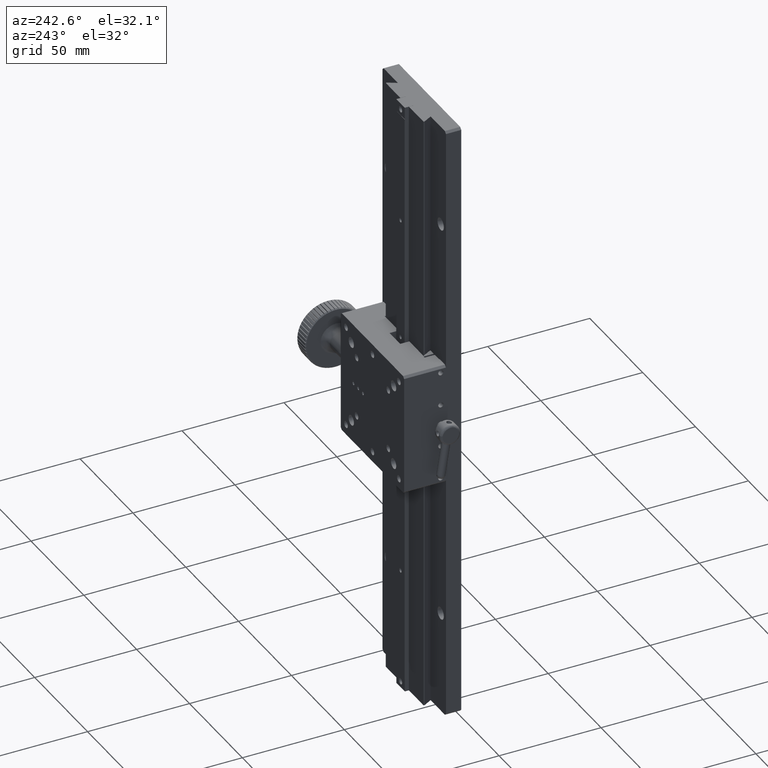
[diagram: clean part render]
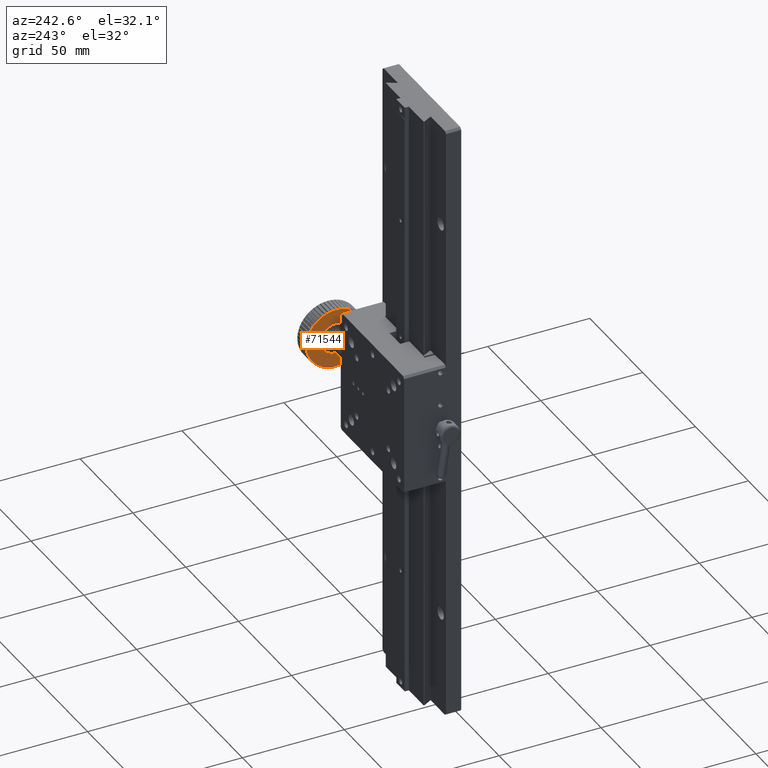
[diagram: same view with one face highlighted and labeled with its STEP entity id]
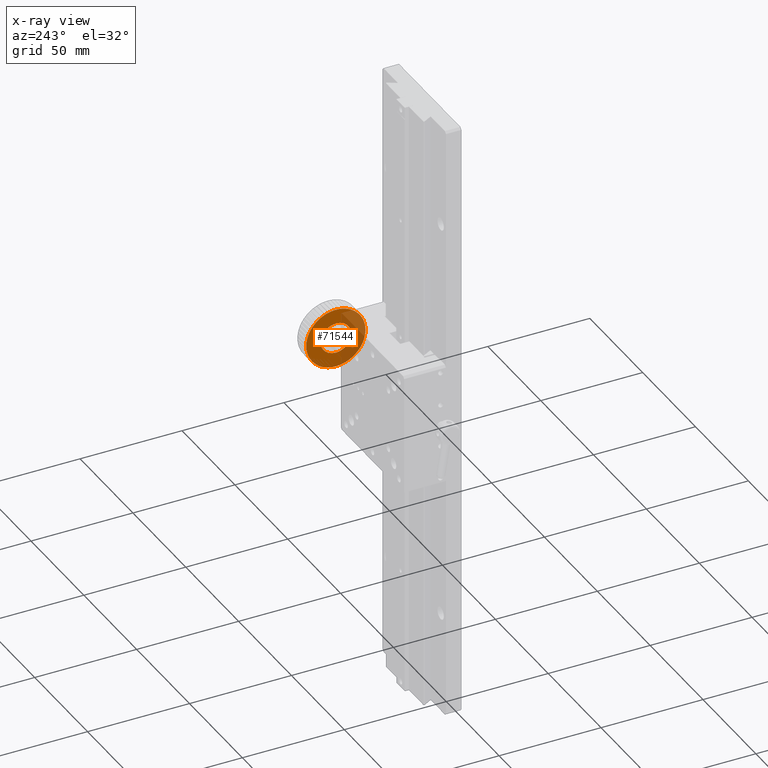
[diagram: x-ray of the same camera — body ghosted, the highlighted face saturated]
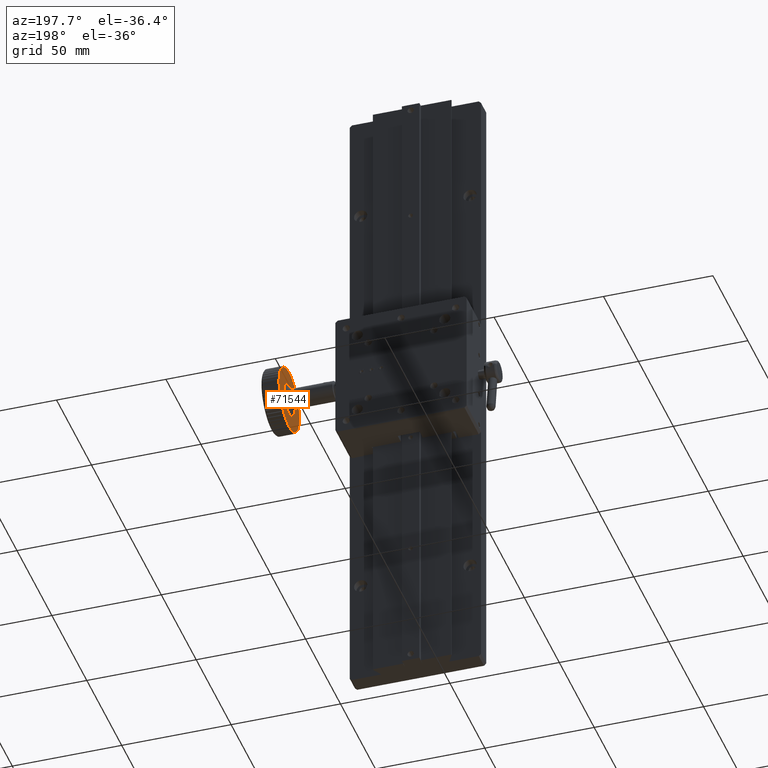
[diagram: same view with one face highlighted and labeled with its STEP entity id]
A machine part, auxiliary view. The second image highlights one B-rep face of the part: STEP entity #71544.
The next image is the same camera in x-ray: the body ghosted, the highlighted face saturated — about 41% of this face is hidden behind the body in this view.
A second angle (auxiliary view) of the same face is appended — the face is thin or edge-on in the first view.
In plain terms, the highlighted planar face has unit normal (1, 0, -0).
Its self-contained STEP definition (entity closure, byte-faithful):
#369 = VERTEX_POINT ( 'NONE', #78694 ) ;
#632 = CIRCLE ( 'NONE', #22159, 14.50000000000001243 ) ;
#742 = EDGE_CURVE ( 'NONE', #30210, #20585, #36621, .T. ) ;
#1082 = DIRECTION ( 'NONE',  ( -6.847956486251026892E-15, 1.000000000000000000, 0.000000000000000000 ) ) ;
#1203 = DIRECTION ( 'NONE',  ( 1.000000000000000000, 7.182248776586407690E-15, 7.933493717912134840E-16 ) ) ;
#1942 = ORIENTED_EDGE ( 'NONE', *, *, #100337, .F. ) ;
#1969 = DIRECTION ( 'NONE',  ( -7.656710514656244822E-15, 1.000000000000000000, 0.000000000000000000 ) ) ;
#2229 = DIRECTION ( 'NONE',  ( -7.656710514656244822E-15, 1.000000000000000000, 0.000000000000000000 ) ) ;
#2376 = DIRECTION ( 'NONE',  ( -7.656710514656244822E-15, 1.000000000000000000, 0.000000000000000000 ) ) ;
#2439 = CARTESIAN_POINT ( 'NONE',  ( 167.3082209827943814, 69.25613327495361204, 64.21141610167211411 ) ) ;
#2643 = AXIS2_PLACEMENT_3D ( 'NONE', #64743, #96328, #25394 ) ;
#2897 = DIRECTION ( 'NONE',  ( 1.000000000000000000, 7.182248776586407690E-15, 7.933493717912134840E-16 ) ) ;
#3110 = EDGE_LOOP ( 'NONE', ( #65495, #80890 ) ) ;
#3294 = DIRECTION ( 'NONE',  ( -7.656710514656244822E-15, 1.000000000000000000, 0.000000000000000000 ) ) ;
#3562 = CARTESIAN_POINT ( 'NONE',  ( 167.3082209827943814, 60.11985954301871260, 52.95182009226056863 ) ) ;
#3643 = EDGE_CURVE ( 'NONE', #60784, #56147, #6180, .T. ) ;
#4199 = DIRECTION ( 'NONE',  ( -7.656710514656244822E-15, 1.000000000000000000, 0.000000000000000000 ) ) ;
#4672 = CARTESIAN_POINT ( 'NONE',  ( 167.3082209827943245, 67.96859279277094856, 49.76869338375148999 ) ) ;
#5164 = AXIS2_PLACEMENT_3D ( 'NONE', #76730, #68940, #60160 ) ;
#5229 = EDGE_CURVE ( 'NONE', #59907, #88522, #60843, .T. ) ;
#5258 = EDGE_CURVE ( 'NONE', #94608, #98872, #54203, .T. ) ;
#5707 = AXIS2_PLACEMENT_3D ( 'NONE', #79042, #14871, #68717 ) ;
#5714 = DIRECTION ( 'NONE',  ( 1.000000000000000000, 7.182248776586407690E-15, 7.933493717912134840E-16 ) ) ;
#5757 = DIRECTION ( 'NONE',  ( -7.656710514656244822E-15, 1.000000000000000000, 0.000000000000000000 ) ) ;
#5851 = DIRECTION ( 'NONE',  ( -7.656710514656244822E-15, 1.000000000000000000, 0.000000000000000000 ) ) ;
#6180 = CIRCLE ( 'NONE', #29386, 14.50000000000001243 ) ;
#6252 = AXIS2_PLACEMENT_3D ( 'NONE', #82883, #44040, #4199 ) ;
#6485 = EDGE_CURVE ( 'NONE', #38094, #84059, #84008, .T. ) ;
#6624 = VERTEX_POINT ( 'NONE', #15041 ) ;
#6891 = CARTESIAN_POINT ( 'NONE',  ( 167.3082209827942677, 77.70933572211355056, 75.99247583275437989 ) ) ;
#6911 = EDGE_CURVE ( 'NONE', #23112, #45445, #14503, .T. ) ;
#6926 = VERTEX_POINT ( 'NONE', #102004 ) ;
#6961 = CARTESIAN_POINT ( 'NONE',  ( 167.3082209827943814, 69.25613327495361204, 64.21141610167211411 ) ) ;
#7124 = ORIENTED_EDGE ( 'NONE', *, *, #48319, .F. ) ;
#7412 = CARTESIAN_POINT ( 'NONE',  ( 167.3082209827943814, 69.25613327495361204, 64.21141610167211411 ) ) ;
#7487 = EDGE_CURVE ( 'NONE', #20585, #83687, #49299, .T. ) ;
#7679 = CARTESIAN_POINT ( 'NONE',  ( 167.3082209827944098, 57.73074387446003186, 73.01001821604181430 ) ) ;
#7999 = CARTESIAN_POINT ( 'NONE',  ( 167.3082209827942961, 73.07814718295520606, 78.19863203934326634 ) ) ;
#8064 = ORIENTED_EDGE ( 'NONE', *, *, #10528, .F. ) ;
#8103 = CARTESIAN_POINT ( 'NONE',  ( 167.3082209827942393, 76.25662021454932926, 51.51325943983538025 ) ) ;
#8386 = CARTESIAN_POINT ( 'NONE',  ( 167.3082209827943814, 69.25613327495361204, 64.21141610167211411 ) ) ;
#8494 = CARTESIAN_POINT ( 'NONE',  ( 167.3082209827943814, 69.25613327495361204, 64.21141610167211411 ) ) ;
#8745 = CARTESIAN_POINT ( 'NONE',  ( 167.3082209827944098, 58.85227804781087713, 74.31140602308565235 ) ) ;
#8781 = CIRCLE ( 'NONE', #17060, 14.50000000000001243 ) ;
#9289 = DIRECTION ( 'NONE',  ( 1.000000000000000000, 7.182248776586407690E-15, 7.933493717912134840E-16 ) ) ;
#9299 = DIRECTION ( 'NONE',  ( 1.000000000000000000, 7.182248776586407690E-15, 7.933493717912134840E-16 ) ) ;
#9323 = CARTESIAN_POINT ( 'NONE',  ( 167.3082209827944098, 61.51569429446423953, 76.47255815244865573 ) ) ;
#9364 = DIRECTION ( 'NONE',  ( 1.000000000000000000, 7.182248776586407690E-15, 7.933493717912134840E-16 ) ) ;
#9487 = DIRECTION ( 'NONE',  ( -7.656710514656244822E-15, 1.000000000000000000, 0.000000000000000000 ) ) ;
#9769 = CIRCLE ( 'NONE', #72576, 14.50000000000001243 ) ;
#9800 = CIRCLE ( 'NONE', #66042, 14.50000000000001243 ) ;
#10375 = DIRECTION ( 'NONE',  ( -7.656710514656244822E-15, 1.000000000000000000, 0.000000000000000000 ) ) ;
#10446 = DIRECTION ( 'NONE',  ( -7.656710514656244822E-15, 1.000000000000000000, 0.000000000000000000 ) ) ;
#10528 = EDGE_CURVE ( 'NONE', #28668, #53601, #18076, .T. ) ;
#10598 = CARTESIAN_POINT ( 'NONE',  ( 167.3082209827943529, 66.26944330320758070, 50.02234696332932629 ) ) ;
#11316 = CARTESIAN_POINT ( 'NONE',  ( 167.3082209827942108, 83.65435916714953635, 62.49645512331229469 ) ) ;
#11327 = EDGE_LOOP ( 'NONE', ( #64991, #25474, #37204, #97542, #59593, #8064, #35140, #43839, #53978, #86699, #36378, #28724, #35858, #69006, #46467, #18281, #93642, #19370, #88269, #100227, #26990, #44947, #30941, #13678, #24183, #58842, #22161, #79518, #33500, #28537, #17740, #47104, #7124, #30717, #68534, #37183, #17965, #17081, #77865, #76853, #26761, #14159, #72867, #74661, #71956, #1942, #89656, #21081, #85825, #102380, #47395, #64082, #92503 ) ) ;
#11875 = VERTEX_POINT ( 'NONE', #96768 ) ;
#11881 = DIRECTION ( 'NONE',  ( -7.656710514656244822E-15, 1.000000000000000000, 0.000000000000000000 ) ) ;
#12220 = CIRCLE ( 'NONE', #101476, 14.50000000000001243 ) ;
#12258 = DIRECTION ( 'NONE',  ( -7.656710514656244822E-15, 1.000000000000000000, 0.000000000000000000 ) ) ;
#12856 = EDGE_CURVE ( 'NONE', #35016, #94608, #87588, .T. ) ;
#13476 = DIRECTION ( 'NONE',  ( 1.000000000000000000, 7.182248776586407690E-15, 7.933493717912134840E-16 ) ) ;
#13557 = CARTESIAN_POINT ( 'NONE',  ( 167.3082209827944666, 54.72260658745184969, 55.84322621235492079 ) ) ;
#13648 = DIRECTION ( 'NONE',  ( 1.000000000000000000, 7.182248776586407690E-15, 7.933493717912134840E-16 ) ) ;
#13678 = ORIENTED_EDGE ( 'NONE', *, *, #25000, .F. ) ;
#13733 = AXIS2_PLACEMENT_3D ( 'NONE', #17129, #15087, #1082 ) ;
#13874 = CIRCLE ( 'NONE', #96614, 14.50000000000001243 ) ;
#13973 = AXIS2_PLACEMENT_3D ( 'NONE', #33562, #88440, #19561 ) ;
#14063 = CARTESIAN_POINT ( 'NONE',  ( 167.3082209827942108, 83.35046552911950357, 60.80556843784784604 ) ) ;
#14159 = ORIENTED_EDGE ( 'NONE', *, *, #7487, .F. ) ;
#14227 = AXIS2_PLACEMENT_3D ( 'NONE', #96844, #49707, #10375 ) ;
#14239 = CARTESIAN_POINT ( 'NONE',  ( 167.3082209827943814, 69.25613327495361204, 64.21141610167211411 ) ) ;
#14503 = CIRCLE ( 'NONE', #19566, 14.50000000000001243 ) ;
#14576 = CARTESIAN_POINT ( 'NONE',  ( 167.3082209827943529, 67.23056917390627518, 47.56368081808039960 ) ) ;
#14611 = CIRCLE ( 'NONE', #16242, 14.50000000000001243 ) ;
#14663 = DIRECTION ( 'NONE',  ( -7.656710514656244822E-15, 1.000000000000000000, 0.000000000000000000 ) ) ;
#14745 = AXIS2_PLACEMENT_3D ( 'NONE', #91850, #53490, #14663 ) ;
#14871 = DIRECTION ( 'NONE',  ( 1.000000000000000000, 7.182248776586407690E-15, 7.933493717912134840E-16 ) ) ;
#14950 = EDGE_CURVE ( 'NONE', #34648, #59740, #27919, .T. ) ;
#15041 = CARTESIAN_POINT ( 'NONE',  ( 167.3082209827942108, 80.24004628629704428, 54.74549538790953562 ) ) ;
#15087 = DIRECTION ( 'NONE',  ( 1.000000000000000000, 6.847956486251026892E-15, -1.642295520525387823E-16 ) ) ;
#15130 = CIRCLE ( 'NONE', #68024, 14.50000000000001243 ) ;
#15245 = EDGE_CURVE ( 'NONE', #98872, #49519, #74184, .T. ) ;
#15559 = CARTESIAN_POINT ( 'NONE',  ( 167.3082209827944382, 55.98652182492983087, 70.05670582634782306 ) ) ;
#15752 = CARTESIAN_POINT ( 'NONE',  ( 167.3082209827944098, 58.85227804781072081, 54.11142618025871798 ) ) ;
#16207 = AXIS2_PLACEMENT_3D ( 'NONE', #73299, #58252, #2376 ) ;
#16242 = AXIS2_PLACEMENT_3D ( 'NONE', #48617, #94218, #95755 ) ;
#16828 = DIRECTION ( 'NONE',  ( 1.000000000000000000, 7.182248776586407690E-15, 7.933493717912134840E-16 ) ) ;
#17060 = AXIS2_PLACEMENT_3D ( 'NONE', #60044, #92647, #21726 ) ;
#17081 = ORIENTED_EDGE ( 'NONE', *, *, #25442, .F. ) ;
#17129 = CARTESIAN_POINT ( 'NONE',  ( 167.3082209827942961, 77.53567866922821850, 76.71937868812661065 ) ) ;
#17475 = AXIS2_PLACEMENT_3D ( 'NONE', #36241, #51248, #67808 ) ;
#17578 = CARTESIAN_POINT ( 'NONE',  ( 167.3082209827943814, 69.25613327495361204, 64.21141610167211411 ) ) ;
#17740 = ORIENTED_EDGE ( 'NONE', *, *, #57649, .F. ) ;
#17965 = ORIENTED_EDGE ( 'NONE', *, *, #91819, .F. ) ;
#18076 = CIRCLE ( 'NONE', #77651, 14.50000000000001243 ) ;
#18256 = CARTESIAN_POINT ( 'NONE',  ( 167.3082209827943814, 69.25613327495361204, 64.21141610167211411 ) ) ;
#18281 = ORIENTED_EDGE ( 'NONE', *, *, #65430, .F. ) ;
#18542 = EDGE_CURVE ( 'NONE', #53601, #90741, #100476, .T. ) ;
#19241 = CIRCLE ( 'NONE', #53962, 14.50000000000001243 ) ;
#19370 = ORIENTED_EDGE ( 'NONE', *, *, #6911, .F. ) ;
#19469 = CARTESIAN_POINT ( 'NONE',  ( 167.3082209827943814, 69.25613327495361204, 64.21141610167211411 ) ) ;
#19561 = DIRECTION ( 'NONE',  ( -7.656710514656244822E-15, 1.000000000000000000, 0.000000000000000000 ) ) ;
#19566 = AXIS2_PLACEMENT_3D ( 'NONE', #77696, #46090, #70409 ) ;
#19822 = VERTEX_POINT ( 'NONE', #78409 ) ;
#19908 = DIRECTION ( 'NONE',  ( 1.000000000000000000, 7.182248776586407690E-15, 7.933493717912134840E-16 ) ) ;
#19938 = CARTESIAN_POINT ( 'NONE',  ( 167.3082209827943529, 64.61222039394256456, 77.94764823255790986 ) ) ;
#20266 = EDGE_CURVE ( 'NONE', #59740, #53208, #59036, .T. ) ;
#20585 = VERTEX_POINT ( 'NONE', #56615 ) ;
#21081 = ORIENTED_EDGE ( 'NONE', *, *, #53510, .F. ) ;
#21116 = DIRECTION ( 'NONE',  ( -7.656710514656244822E-15, 1.000000000000000000, 0.000000000000000000 ) ) ;
#21404 = AXIS2_PLACEMENT_3D ( 'NONE', #32358, #16828, #79998 ) ;
#21503 = CARTESIAN_POINT ( 'NONE',  ( 167.3082209827944098, 55.38831900294405131, 68.44623927590836843 ) ) ;
#21726 = DIRECTION ( 'NONE',  ( -7.656710514656244822E-15, 1.000000000000000000, 0.000000000000000000 ) ) ;
#21752 = DIRECTION ( 'NONE',  ( -7.656710514656244822E-15, 1.000000000000000000, 0.000000000000000000 ) ) ;
#22035 = VERTEX_POINT ( 'NONE', #44670 ) ;
#22054 = CARTESIAN_POINT ( 'NONE',  ( 167.3082209827944098, 60.11985954301887602, 75.47101211108380880 ) ) ;
#22102 = DIRECTION ( 'NONE',  ( 1.000000000000000000, 7.182248776586407690E-15, 7.933493717912134840E-16 ) ) ;
#22159 = AXIS2_PLACEMENT_3D ( 'NONE', #78874, #48288, #85613 ) ;
#22161 = ORIENTED_EDGE ( 'NONE', *, *, #12856, .F. ) ;
#22986 = AXIS2_PLACEMENT_3D ( 'NONE', #61764, #19908, #51469 ) ;
#23022 = DIRECTION ( 'NONE',  ( 1.000000000000000000, 7.182248776586407690E-15, 7.933493717912134840E-16 ) ) ;
#23112 = VERTEX_POINT ( 'NONE', #59044 ) ;
#23518 = DIRECTION ( 'NONE',  ( 1.000000000000000000, 7.182248776586407690E-15, 7.933493717912134840E-16 ) ) ;
#23681 = VERTEX_POINT ( 'NONE', #63000 ) ;
#24183 = ORIENTED_EDGE ( 'NONE', *, *, #15245, .F. ) ;
#24207 = CARTESIAN_POINT ( 'NONE',  ( 167.3082209827943814, 63.00215198172632824, 68.35118879880940312 ) ) ;
#24477 = AXIS2_PLACEMENT_3D ( 'NONE', #50798, #60106, #10446 ) ;
#24578 = AXIS2_PLACEMENT_3D ( 'NONE', #2439, #51596, #12258 ) ;
#24675 = CIRCLE ( 'NONE', #41241, 14.50000000000001243 ) ;
#24895 = DIRECTION ( 'NONE',  ( 1.000000000000000000, 7.182248776586407690E-15, 7.933493717912134840E-16 ) ) ;
#24943 = DIRECTION ( 'NONE',  ( -7.656710514656244822E-15, 1.000000000000000000, 0.000000000000000000 ) ) ;
#25000 = EDGE_CURVE ( 'NONE', #49519, #55529, #30935, .T. ) ;
#25394 = DIRECTION ( 'NONE',  ( -7.656710514656244822E-15, 1.000000000000000000, 0.000000000000000000 ) ) ;
#25442 = EDGE_CURVE ( 'NONE', #76677, #6926, #73958, .T. ) ;
#25474 = ORIENTED_EDGE ( 'NONE', *, *, #5229, .F. ) ;
#25701 = EDGE_CURVE ( 'NONE', #73346, #76677, #82317, .T. ) ;
#26133 = AXIS2_PLACEMENT_3D ( 'NONE', #61592, #5714, #21752 ) ;
#26232 = VERTEX_POINT ( 'NONE', #8745 ) ;
#26262 = CARTESIAN_POINT ( 'NONE',  ( 167.3082209827944098, 55.38831900294398025, 59.97659292743605164 ) ) ;
#26370 = DIRECTION ( 'NONE',  ( -7.656710514656244822E-15, 1.000000000000000000, 0.000000000000000000 ) ) ;
#26761 = ORIENTED_EDGE ( 'NONE', *, *, #71032, .F. ) ;
#26990 = ORIENTED_EDGE ( 'NONE', *, *, #14950, .F. ) ;
#27064 = EDGE_CURVE ( 'NONE', #62506, #36990, #74999, .T. ) ;
#27919 = CIRCLE ( 'NONE', #67607, 14.50000000000001243 ) ;
#28257 = EDGE_CURVE ( 'NONE', #71192, #11875, #50895, .T. ) ;
#28423 = DIRECTION ( 'NONE',  ( 1.000000000000000000, 7.182248776586407690E-15, 7.933493717912134840E-16 ) ) ;
#28537 = ORIENTED_EDGE ( 'NONE', *, *, #80657, .F. ) ;
#28668 = VERTEX_POINT ( 'NONE', #70372 ) ;
#28721 = EDGE_CURVE ( 'NONE', #37686, #35016, #95610, .T. ) ;
#28724 = ORIENTED_EDGE ( 'NONE', *, *, #6485, .F. ) ;
#28860 = CARTESIAN_POINT ( 'NONE',  ( 167.3082209827943814, 69.25613327495361204, 64.21141610167211411 ) ) ;
#28908 = AXIS2_PLACEMENT_3D ( 'NONE', #92041, #91536, #21116 ) ;
#29026 = EDGE_CURVE ( 'NONE', #90741, #40775, #14611, .T. ) ;
#29386 = AXIS2_PLACEMENT_3D ( 'NONE', #93038, #70226, #30894 ) ;
#29589 = CARTESIAN_POINT ( 'NONE',  ( 167.3082209827942393, 81.28251571398159570, 72.31179420582490991 ) ) ;
#29896 = CARTESIAN_POINT ( 'NONE',  ( 167.3082209827942108, 83.35046552911956041, 67.61726376549617612 ) ) ;
#29976 = AXIS2_PLACEMENT_3D ( 'NONE', #74163, #73154, #2229 ) ;
#30210 = VERTEX_POINT ( 'NONE', #7999 ) ;
#30717 = ORIENTED_EDGE ( 'NONE', *, *, #77315, .F. ) ;
#30894 = DIRECTION ( 'NONE',  ( -7.656710514656244822E-15, 1.000000000000000000, 0.000000000000000000 ) ) ;
#30905 = CIRCLE ( 'NONE', #60673, 14.50000000000001243 ) ;
#30935 = CIRCLE ( 'NONE', #80563, 14.50000000000001243 ) ;
#30941 = ORIENTED_EDGE ( 'NONE', *, *, #53213, .F. ) ;
#31433 = CARTESIAN_POINT ( 'NONE',  ( 167.3082209827942961, 73.07814718295499290, 50.22420016400089082 ) ) ;
#31634 = DIRECTION ( 'NONE',  ( -7.656710514656244822E-15, 1.000000000000000000, 0.000000000000000000 ) ) ;
#32146 = FACE_BOUND ( 'NONE', #3110, .T. ) ;
#32318 = CIRCLE ( 'NONE', #70295, 14.50000000000001243 ) ;
#32348 = CIRCLE ( 'NONE', #52190, 14.50000000000001243 ) ;
#32358 = CARTESIAN_POINT ( 'NONE',  ( 167.3082209827943814, 69.25613327495361204, 64.21141610167211411 ) ) ;
#33151 = EDGE_CURVE ( 'NONE', #43740, #68751, #92567, .T. ) ;
#33500 = ORIENTED_EDGE ( 'NONE', *, *, #68095, .F. ) ;
#33562 = CARTESIAN_POINT ( 'NONE',  ( 167.3082209827943814, 69.25613327495361204, 64.21141610167211411 ) ) ;
#33899 = CARTESIAN_POINT ( 'NONE',  ( 167.3082209827943529, 64.61222039394237981, 50.47518397078636099 ) ) ;
#34469 = DIRECTION ( 'NONE',  ( -7.656710514656244822E-15, 1.000000000000000000, 0.000000000000000000 ) ) ;
#34523 = VERTEX_POINT ( 'NONE', #21503 ) ;
#34648 = VERTEX_POINT ( 'NONE', #15752 ) ;
#34799 = DIRECTION ( 'NONE',  ( -7.656710514656244822E-15, 1.000000000000000000, 0.000000000000000000 ) ) ;
#35016 = VERTEX_POINT ( 'NONE', #63347 ) ;
#35109 = AXIS2_PLACEMENT_3D ( 'NONE', #88131, #81397, #48766 ) ;
#35140 = ORIENTED_EDGE ( 'NONE', *, *, #79951, .F. ) ;
#35244 = EDGE_CURVE ( 'NONE', #23681, #86205, #81061, .T. ) ;
#35755 = CIRCLE ( 'NONE', #14227, 14.50000000000001243 ) ;
#35835 = AXIS2_PLACEMENT_3D ( 'NONE', #6961, #23022, #76891 ) ;
#35858 = ORIENTED_EDGE ( 'NONE', *, *, #90245, .F. ) ;
#36140 = DIRECTION ( 'NONE',  ( 1.000000000000000000, 7.182248776586407690E-15, 7.933493717912134840E-16 ) ) ;
#36154 = CIRCLE ( 'NONE', #24578, 14.50000000000001243 ) ;
#36198 = VERTEX_POINT ( 'NONE', #51423 ) ;
#36241 = CARTESIAN_POINT ( 'NONE',  ( 167.3082209827943814, 69.25613327495361204, 64.21141610167211411 ) ) ;
#36378 = ORIENTED_EDGE ( 'NONE', *, *, #61796, .F. ) ;
#36621 = CIRCLE ( 'NONE', #71307, 14.50000000000001243 ) ;
#36990 = VERTEX_POINT ( 'NONE', #41501 ) ;
#37183 = ORIENTED_EDGE ( 'NONE', *, *, #68441, .F. ) ;
#37204 = ORIENTED_EDGE ( 'NONE', *, *, #57661, .F. ) ;
#37288 = CARTESIAN_POINT ( 'NONE',  ( 167.3082209827943814, 69.25613327495361204, 64.21141610167211411 ) ) ;
#37686 = VERTEX_POINT ( 'NONE', #54219 ) ;
#38094 = VERTEX_POINT ( 'NONE', #31433 ) ;
#38181 = CARTESIAN_POINT ( 'NONE',  ( 167.3082209827942108, 82.15616109437746672, 70.83254004388076908 ) ) ;
#38543 = DIRECTION ( 'NONE',  ( -7.656710514656244822E-15, 1.000000000000000000, 0.000000000000000000 ) ) ;
#38554 = CIRCLE ( 'NONE', #78290, 14.50000000000001243 ) ;
#39386 = PLANE ( 'NONE',  #13733 ) ;
#39884 = EDGE_CURVE ( 'NONE', #81503, #71192, #69634, .T. ) ;
#40069 = DIRECTION ( 'NONE',  ( -7.656710514656244822E-15, 1.000000000000000000, 0.000000000000000000 ) ) ;
#40271 = CARTESIAN_POINT ( 'NONE',  ( 167.3082209827942108, 83.75613327495355520, 64.21141610167211411 ) ) ;
#40428 = FACE_OUTER_BOUND ( 'NONE', #11327, .T. ) ;
#40473 = EDGE_CURVE ( 'NONE', #36990, #62506, #56520, .T. ) ;
#40499 = DIRECTION ( 'NONE',  ( -7.656710514656244822E-15, 1.000000000000000000, 0.000000000000000000 ) ) ;
#40605 = EDGE_CURVE ( 'NONE', #36198, #60784, #101081, .T. ) ;
#40775 = VERTEX_POINT ( 'NONE', #14063 ) ;
#40776 = DIRECTION ( 'NONE',  ( 1.000000000000000000, 7.182248776586407690E-15, 7.933493717912134840E-16 ) ) ;
#40948 = DIRECTION ( 'NONE',  ( -7.656710514656244822E-15, 1.000000000000000000, 0.000000000000000000 ) ) ;
#41233 = CARTESIAN_POINT ( 'NONE',  ( 167.3082209827942393, 79.04338679696775216, 74.90999864777703010 ) ) ;
#41241 = AXIS2_PLACEMENT_3D ( 'NONE', #95305, #24895, #31634 ) ;
#41351 = EDGE_CURVE ( 'NONE', #48417, #26232, #15130, .T. ) ;
#41501 = CARTESIAN_POINT ( 'NONE',  ( 167.3082209827942961, 75.51011456818085321, 60.07164340453480378 ) ) ;
#42545 = CARTESIAN_POINT ( 'NONE',  ( 167.3082209827942961, 71.39700845298949616, 49.87033338550072870 ) ) ;
#42952 = AXIS2_PLACEMENT_3D ( 'NONE', #14239, #47320, #38543 ) ;
#43658 = CARTESIAN_POINT ( 'NONE',  ( 167.3082209827943814, 69.25613327495361204, 64.21141610167211411 ) ) ;
#43740 = VERTEX_POINT ( 'NONE', #41233 ) ;
#43839 = ORIENTED_EDGE ( 'NONE', *, *, #80859, .F. ) ;
#44040 = DIRECTION ( 'NONE',  ( 1.000000000000000000, 7.182248776586407690E-15, 7.933493717912134840E-16 ) ) ;
#44218 = CARTESIAN_POINT ( 'NONE',  ( 167.3082209827942961, 69.68581652838062723, 49.71778397229460467 ) ) ;
#44670 = CARTESIAN_POINT ( 'NONE',  ( 167.3082209827942677, 76.25662021454951400, 76.90957276350873428 ) ) ;
#44947 = ORIENTED_EDGE ( 'NONE', *, *, #91382, .F. ) ;
#45227 = DIRECTION ( 'NONE',  ( -7.656710514656244822E-15, 1.000000000000000000, 0.000000000000000000 ) ) ;
#45229 = VERTEX_POINT ( 'NONE', #92982 ) ;
#45372 = CIRCLE ( 'NONE', #13973, 14.50000000000001243 ) ;
#45445 = VERTEX_POINT ( 'NONE', #33899 ) ;
#45964 = EDGE_CURVE ( 'NONE', #22035, #369, #52814, .T. ) ;
#46090 = DIRECTION ( 'NONE',  ( 1.000000000000000000, 7.182248776586407690E-15, 7.933493717912134840E-16 ) ) ;
#46459 = EDGE_CURVE ( 'NONE', #369, #30210, #57762, .T. ) ;
#46467 = ORIENTED_EDGE ( 'NONE', *, *, #59126, .F. ) ;
#46611 = EDGE_CURVE ( 'NONE', #82070, #36198, #9800, .T. ) ;
#46733 = DIRECTION ( 'NONE',  ( -7.656710514656244822E-15, 1.000000000000000000, 0.000000000000000000 ) ) ;
#46753 = AXIS2_PLACEMENT_3D ( 'NONE', #73399, #89444, #1969 ) ;
#47104 = ORIENTED_EDGE ( 'NONE', *, *, #35244, .F. ) ;
#47320 = DIRECTION ( 'NONE',  ( 1.000000000000000000, 7.182248776586407690E-15, 7.933493717912134840E-16 ) ) ;
#47389 = CARTESIAN_POINT ( 'NONE',  ( 167.3082209827942393, 80.24004628629715796, 73.67733681543452917 ) ) ;
#47395 = ORIENTED_EDGE ( 'NONE', *, *, #40605, .F. ) ;
#47839 = AXIS2_PLACEMENT_3D ( 'NONE', #63707, #9364, #40948 ) ;
#47971 = AXIS2_PLACEMENT_3D ( 'NONE', #8494, #23518, #40069 ) ;
#48288 = DIRECTION ( 'NONE',  ( 1.000000000000000000, 7.182248776586407690E-15, 7.933493717912134840E-16 ) ) ;
#48319 = EDGE_CURVE ( 'NONE', #70803, #23681, #36154, .T. ) ;
#48417 = VERTEX_POINT ( 'NONE', #22054 ) ;
#48617 = CARTESIAN_POINT ( 'NONE',  ( 167.3082209827943814, 69.25613327495361204, 64.21141610167211411 ) ) ;
#48766 = DIRECTION ( 'NONE',  ( -7.656710514656244822E-15, 1.000000000000000000, 0.000000000000000000 ) ) ;
#49096 = CARTESIAN_POINT ( 'NONE',  ( 167.3082209827943814, 69.25613327495361204, 64.21141610167211411 ) ) ;
#49299 = CIRCLE ( 'NONE', #82434, 14.50000000000001243 ) ;
#49519 = VERTEX_POINT ( 'NONE', #82035 ) ;
#49707 = DIRECTION ( 'NONE',  ( 1.000000000000000000, 7.182248776586407690E-15, 7.933493717912134840E-16 ) ) ;
#50288 = CIRCLE ( 'NONE', #5707, 14.50000000000001243 ) ;
#50798 = CARTESIAN_POINT ( 'NONE',  ( 167.3082209827943814, 69.25613327495361204, 64.21141610167211411 ) ) ;
#50862 = DIRECTION ( 'NONE',  ( -7.656710514656244822E-15, 1.000000000000000000, 0.000000000000000000 ) ) ;
#50895 = CIRCLE ( 'NONE', #6252, 14.50000000000001243 ) ;
#51248 = DIRECTION ( 'NONE',  ( 1.000000000000000000, 7.182248776586407690E-15, 7.933493717912134840E-16 ) ) ;
#51423 = CARTESIAN_POINT ( 'NONE',  ( 167.3082209827942108, 82.84871836139836887, 69.26033981547071505 ) ) ;
#51469 = DIRECTION ( 'NONE',  ( -7.656710514656244822E-15, 1.000000000000000000, 0.000000000000000000 ) ) ;
#51596 = DIRECTION ( 'NONE',  ( 1.000000000000000000, 7.182248776586407690E-15, 7.933493717912134840E-16 ) ) ;
#51670 = CIRCLE ( 'NONE', #35109, 14.50000000000001243 ) ;
#52190 = AXIS2_PLACEMENT_3D ( 'NONE', #18256, #96943, #34799 ) ;
#52814 = CIRCLE ( 'NONE', #21404, 14.50000000000001243 ) ;
#52950 = CARTESIAN_POINT ( 'NONE',  ( 167.3082209827943814, 69.25613327495361204, 64.21141610167211411 ) ) ;
#53208 = VERTEX_POINT ( 'NONE', #88568 ) ;
#53213 = EDGE_CURVE ( 'NONE', #55529, #58991, #24675, .T. ) ;
#53490 = DIRECTION ( 'NONE',  ( 1.000000000000000000, 7.182248776586407690E-15, 7.933493717912134840E-16 ) ) ;
#53510 = EDGE_CURVE ( 'NONE', #75456, #43740, #85936, .T. ) ;
#53601 = VERTEX_POINT ( 'NONE', #56975 ) ;
#53914 = CARTESIAN_POINT ( 'NONE',  ( 167.3082209827943814, 63.00215198172632824, 68.35118879880940312 ) ) ;
#53962 = AXIS2_PLACEMENT_3D ( 'NONE', #66190, #9289, #72961 ) ;
#53978 = ORIENTED_EDGE ( 'NONE', *, *, #28257, .F. ) ;
#54203 = CIRCLE ( 'NONE', #16207, 14.50000000000001243 ) ;
#54219 = CARTESIAN_POINT ( 'NONE',  ( 167.3082209827944382, 54.78159916437091681, 65.07040520613108470 ) ) ;
#54913 = DIRECTION ( 'NONE',  ( 1.000000000000000000, 7.182248776586407690E-15, 7.933493717912134840E-16 ) ) ;
#55419 = DIRECTION ( 'NONE',  ( -7.656710514656244822E-15, 1.000000000000000000, 0.000000000000000000 ) ) ;
#55529 = VERTEX_POINT ( 'NONE', #57581 ) ;
#56147 = VERTEX_POINT ( 'NONE', #29589 ) ;
#56520 =( BOUNDED_CURVE ( )  B_SPLINE_CURVE ( 3, ( #61682, #14576, #13557, #53914 ),
 .UNSPECIFIED., .F., .F. ) 
 B_SPLINE_CURVE_WITH_KNOTS ( ( 4, 4 ),
 ( 0.000000000000000000, 1.000000000000000000 ),
 .UNSPECIFIED. ) 
 CURVE ( )  GEOMETRIC_REPRESENTATION_ITEM ( )  RATIONAL_B_SPLINE_CURVE ( ( 1.000000000000000000, 0.3333333333333354798, 0.3333333333333354798, 1.000000000000000000 ) ) 
 REPRESENTATION_ITEM ( '' )  );
#56615 = CARTESIAN_POINT ( 'NONE',  ( 167.3082209827943245, 71.39700845298969512, 78.55249881784344268 ) ) ;
#56975 = CARTESIAN_POINT ( 'NONE',  ( 167.3082209827942393, 82.15616109437739567, 57.59029215946326019 ) ) ;
#57561 = CARTESIAN_POINT ( 'NONE',  ( 167.3082209827942961, 74.70563321560997849, 50.77441679391052531 ) ) ;
#57581 = CARTESIAN_POINT ( 'NONE',  ( 167.3082209827944098, 56.77100090432688972, 56.83771488125849203 ) ) ;
#57649 = EDGE_CURVE ( 'NONE', #86205, #34523, #68746, .T. ) ;
#57661 = EDGE_CURVE ( 'NONE', #40775, #59907, #35755, .T. ) ;
#57762 = CIRCLE ( 'NONE', #14745, 14.50000000000001243 ) ;
#57888 = DIRECTION ( 'NONE',  ( -7.656710514656244822E-15, 1.000000000000000000, 0.000000000000000000 ) ) ;
#57913 = CARTESIAN_POINT ( 'NONE',  ( 167.3082209827943814, 57.73074387445991817, 55.41281398730256313 ) ) ;
#57970 = VERTEX_POINT ( 'NONE', #4672 ) ;
#58029 = EDGE_CURVE ( 'NONE', #94269, #82070, #90274, .T. ) ;
#58252 = DIRECTION ( 'NONE',  ( 1.000000000000000000, 7.182248776586407690E-15, 7.933493717912134840E-16 ) ) ;
#58842 = ORIENTED_EDGE ( 'NONE', *, *, #5258, .F. ) ;
#58991 = VERTEX_POINT ( 'NONE', #57913 ) ;
#59036 = CIRCLE ( 'NONE', #35835, 14.50000000000001243 ) ;
#59044 = CARTESIAN_POINT ( 'NONE',  ( 167.3082209827943814, 63.02018784194396517, 51.12084756716889444 ) ) ;
#59126 = EDGE_CURVE ( 'NONE', #57970, #67943, #19241, .T. ) ;
#59493 = CARTESIAN_POINT ( 'NONE',  ( 167.3082209827943814, 69.25613327495361204, 64.21141610167211411 ) ) ;
#59593 = ORIENTED_EDGE ( 'NONE', *, *, #18542, .F. ) ;
#59667 = DIRECTION ( 'NONE',  ( 1.000000000000000000, 7.182248776586407690E-15, 7.933493717912134840E-16 ) ) ;
#59740 = VERTEX_POINT ( 'NONE', #3562 ) ;
#59907 = VERTEX_POINT ( 'NONE', #11316 ) ;
#60044 = CARTESIAN_POINT ( 'NONE',  ( 167.3082209827943814, 69.25613327495361204, 64.21141610167211411 ) ) ;
#60106 = DIRECTION ( 'NONE',  ( 1.000000000000000000, 7.182248776586407690E-15, 7.933493717912134840E-16 ) ) ;
#60160 = DIRECTION ( 'NONE',  ( -7.656710514656244822E-15, 1.000000000000000000, 0.000000000000000000 ) ) ;
#60512 = CARTESIAN_POINT ( 'NONE',  ( 167.3082209827943814, 69.25613327495361204, 64.21141610167211411 ) ) ;
#60673 = AXIS2_PLACEMENT_3D ( 'NONE', #101531, #54913, #55419 ) ;
#60784 = VERTEX_POINT ( 'NONE', #38181 ) ;
#60843 = CIRCLE ( 'NONE', #102155, 14.50000000000001243 ) ;
#61592 = CARTESIAN_POINT ( 'NONE',  ( 167.3082209827943814, 69.25613327495361204, 64.21141610167211411 ) ) ;
#61682 = CARTESIAN_POINT ( 'NONE',  ( 167.3082209827942961, 75.51011456818085321, 60.07164340453480378 ) ) ;
#61764 = CARTESIAN_POINT ( 'NONE',  ( 167.3082209827943814, 69.25613327495361204, 64.21141610167211411 ) ) ;
#61796 = EDGE_CURVE ( 'NONE', #84059, #81503, #88722, .T. ) ;
#62506 = VERTEX_POINT ( 'NONE', #24207 ) ;
#62567 = AXIS2_PLACEMENT_3D ( 'NONE', #8386, #95876, #24943 ) ;
#62663 = EDGE_CURVE ( 'NONE', #45445, #89319, #32318, .T. ) ;
#63000 = CARTESIAN_POINT ( 'NONE',  ( 167.3082209827944382, 56.77100090432700341, 71.58511732208590672 ) ) ;
#63347 = CARTESIAN_POINT ( 'NONE',  ( 167.3082209827944382, 54.78159916437091681, 63.35242699721334247 ) ) ;
#63707 = CARTESIAN_POINT ( 'NONE',  ( 167.3082209827943814, 69.25613327495361204, 64.21141610167211411 ) ) ;
#64082 = ORIENTED_EDGE ( 'NONE', *, *, #46611, .F. ) ;
#64261 = CARTESIAN_POINT ( 'NONE',  ( 167.3082209827942961, 75.51011456818085321, 60.07164340453480378 ) ) ;
#64743 = CARTESIAN_POINT ( 'NONE',  ( 167.3082209827943814, 69.25613327495361204, 64.21141610167211411 ) ) ;
#64991 = ORIENTED_EDGE ( 'NONE', *, *, #88199, .F. ) ;
#65314 = AXIS2_PLACEMENT_3D ( 'NONE', #59493, #76566, #11881 ) ;
#65430 = EDGE_CURVE ( 'NONE', #89319, #57970, #30905, .T. ) ;
#65495 = ORIENTED_EDGE ( 'NONE', *, *, #40473, .F. ) ;
#65885 = CARTESIAN_POINT ( 'NONE',  ( 167.3082209827943814, 69.25613327495361204, 64.21141610167211411 ) ) ;
#65964 = CIRCLE ( 'NONE', #22986, 14.50000000000001243 ) ;
#66030 = CARTESIAN_POINT ( 'NONE',  ( 167.3082209827943814, 69.25613327495361204, 64.21141610167211411 ) ) ;
#66042 = AXIS2_PLACEMENT_3D ( 'NONE', #90033, #28423, #26370 ) ;
#66190 = CARTESIAN_POINT ( 'NONE',  ( 167.3082209827943814, 69.25613327495361204, 64.21141610167211411 ) ) ;
#67607 = AXIS2_PLACEMENT_3D ( 'NONE', #52950, #76780, #5851 ) ;
#67808 = DIRECTION ( 'NONE',  ( -7.656710514656244822E-15, 1.000000000000000000, 0.000000000000000000 ) ) ;
#67943 = VERTEX_POINT ( 'NONE', #44218 ) ;
#68024 = AXIS2_PLACEMENT_3D ( 'NONE', #70466, #95316, #72534 ) ;
#68095 = EDGE_CURVE ( 'NONE', #45229, #37686, #65964, .T. ) ;
#68359 = DIRECTION ( 'NONE',  ( -7.656710514656244822E-15, 1.000000000000000000, 0.000000000000000000 ) ) ;
#68441 = EDGE_CURVE ( 'NONE', #96070, #48417, #9769, .T. ) ;
#68495 = AXIS2_PLACEMENT_3D ( 'NONE', #89986, #36140, #98786 ) ;
#68534 = ORIENTED_EDGE ( 'NONE', *, *, #41351, .F. ) ;
#68717 = DIRECTION ( 'NONE',  ( -7.656710514656244822E-15, 1.000000000000000000, 0.000000000000000000 ) ) ;
#68746 = CIRCLE ( 'NONE', #2643, 14.50000000000001243 ) ;
#68751 = VERTEX_POINT ( 'NONE', #6891 ) ;
#68940 = DIRECTION ( 'NONE',  ( 1.000000000000000000, 7.182248776586407690E-15, 7.933493717912134840E-16 ) ) ;
#69006 = ORIENTED_EDGE ( 'NONE', *, *, #81756, .F. ) ;
#69332 = CARTESIAN_POINT ( 'NONE',  ( 167.3082209827943529, 66.26944330320777965, 78.40048524001491614 ) ) ;
#69634 = CIRCLE ( 'NONE', #29976, 14.50000000000001243 ) ;
#70181 = CIRCLE ( 'NONE', #80107, 14.50000000000001243 ) ;
#70226 = DIRECTION ( 'NONE',  ( 1.000000000000000000, 7.182248776586407690E-15, 7.933493717912134840E-16 ) ) ;
#70295 = AXIS2_PLACEMENT_3D ( 'NONE', #92215, #40776, #5757 ) ;
#70358 = CARTESIAN_POINT ( 'NONE',  ( 167.3082209827942108, 83.65435916714957898, 65.92637708003172747 ) ) ;
#70372 = CARTESIAN_POINT ( 'NONE',  ( 167.3082209827942393, 81.28251571398146780, 56.11103799751914067 ) ) ;
#70409 = DIRECTION ( 'NONE',  ( -7.656710514656244822E-15, 1.000000000000000000, 0.000000000000000000 ) ) ;
#70466 = CARTESIAN_POINT ( 'NONE',  ( 167.3082209827943814, 69.25613327495361204, 64.21141610167211411 ) ) ;
#70803 = VERTEX_POINT ( 'NONE', #7679 ) ;
#71032 = EDGE_CURVE ( 'NONE', #83687, #19822, #91433, .T. ) ;
#71192 = VERTEX_POINT ( 'NONE', #99774 ) ;
#71307 = AXIS2_PLACEMENT_3D ( 'NONE', #17578, #9299, #88501 ) ;
#71544 = ADVANCED_FACE ( 'NONE', ( #40428, #32146 ), #39386, .F. ) ;
#71956 = ORIENTED_EDGE ( 'NONE', *, *, #45964, .F. ) ;
#72534 = DIRECTION ( 'NONE',  ( -7.656710514656244822E-15, 1.000000000000000000, 0.000000000000000000 ) ) ;
#72576 = AXIS2_PLACEMENT_3D ( 'NONE', #101634, #78338, #46733 ) ;
#72867 = ORIENTED_EDGE ( 'NONE', *, *, #742, .F. ) ;
#72937 = DIRECTION ( 'NONE',  ( 1.000000000000000000, 7.182248776586407690E-15, 7.933493717912134840E-16 ) ) ;
#72961 = DIRECTION ( 'NONE',  ( -7.656710514656244822E-15, 1.000000000000000000, 0.000000000000000000 ) ) ;
#73154 = DIRECTION ( 'NONE',  ( 1.000000000000000000, 7.182248776586407690E-15, 7.933493717912134840E-16 ) ) ;
#73155 = EDGE_CURVE ( 'NONE', #19822, #73346, #8781, .T. ) ;
#73299 = CARTESIAN_POINT ( 'NONE',  ( 167.3082209827943814, 69.25613327495361204, 64.21141610167211411 ) ) ;
#73346 = VERTEX_POINT ( 'NONE', #69332 ) ;
#73399 = CARTESIAN_POINT ( 'NONE',  ( 167.3082209827943814, 69.25613327495361204, 64.21141610167211411 ) ) ;
#73540 = CIRCLE ( 'NONE', #28908, 14.50000000000001243 ) ;
#73958 = CIRCLE ( 'NONE', #87172, 14.50000000000001243 ) ;
#74163 = CARTESIAN_POINT ( 'NONE',  ( 167.3082209827943814, 69.25613327495361204, 64.21141610167211411 ) ) ;
#74184 = CIRCLE ( 'NONE', #62567, 14.50000000000001243 ) ;
#74661 = ORIENTED_EDGE ( 'NONE', *, *, #46459, .F. ) ;
#74999 =( BOUNDED_CURVE ( )  B_SPLINE_CURVE ( 3, ( #88603, #79309, #80854, #64261 ),
 .UNSPECIFIED., .F., .T. ) 
 B_SPLINE_CURVE_WITH_KNOTS ( ( 4, 4 ),
 ( 0.000000000000000000, 1.000000000000000000 ),
 .UNSPECIFIED. ) 
 CURVE ( )  GEOMETRIC_REPRESENTATION_ITEM ( )  RATIONAL_B_SPLINE_CURVE ( ( 1.000000000000000000, 0.3333333333333337034, 0.3333333333333337034, 1.000000000000000000 ) ) 
 REPRESENTATION_ITEM ( '' )  );
#75248 = DIRECTION ( 'NONE',  ( 1.000000000000000000, 7.182248776586407690E-15, 7.933493717912134840E-16 ) ) ;
#75456 = VERTEX_POINT ( 'NONE', #47389 ) ;
#76481 = DIRECTION ( 'NONE',  ( -7.656710514656244822E-15, 1.000000000000000000, 0.000000000000000000 ) ) ;
#76566 = DIRECTION ( 'NONE',  ( 1.000000000000000000, 7.182248776586407690E-15, 7.933493717912134840E-16 ) ) ;
#76677 = VERTEX_POINT ( 'NONE', #19938 ) ;
#76730 = CARTESIAN_POINT ( 'NONE',  ( 167.3082209827943814, 69.25613327495361204, 64.21141610167211411 ) ) ;
#76780 = DIRECTION ( 'NONE',  ( 1.000000000000000000, 7.182248776586407690E-15, 7.933493717912134840E-16 ) ) ;
#76853 = ORIENTED_EDGE ( 'NONE', *, *, #73155, .F. ) ;
#76891 = DIRECTION ( 'NONE',  ( -7.656710514656244822E-15, 1.000000000000000000, 0.000000000000000000 ) ) ;
#77315 = EDGE_CURVE ( 'NONE', #26232, #70803, #632, .T. ) ;
#77651 = AXIS2_PLACEMENT_3D ( 'NONE', #37288, #13476, #68359 ) ;
#77696 = CARTESIAN_POINT ( 'NONE',  ( 167.3082209827943814, 69.25613327495361204, 64.21141610167211411 ) ) ;
#77865 = ORIENTED_EDGE ( 'NONE', *, *, #25701, .F. ) ;
#78290 = AXIS2_PLACEMENT_3D ( 'NONE', #60512, #93118, #100889 ) ;
#78338 = DIRECTION ( 'NONE',  ( 1.000000000000000000, 7.182248776586407690E-15, 7.933493717912134840E-16 ) ) ;
#78409 = CARTESIAN_POINT ( 'NONE',  ( 167.3082209827943529, 67.96859279277117594, 78.65413881959275955 ) ) ;
#78476 = CIRCLE ( 'NONE', #68495, 14.50000000000001243 ) ;
#78560 = CIRCLE ( 'NONE', #65314, 14.50000000000001243 ) ;
#78694 = CARTESIAN_POINT ( 'NONE',  ( 167.3082209827942677, 74.70563321561017744, 77.64841540943362475 ) ) ;
#78874 = CARTESIAN_POINT ( 'NONE',  ( 167.3082209827943814, 69.25613327495361204, 64.21141610167211411 ) ) ;
#78978 = AXIS2_PLACEMENT_3D ( 'NONE', #65885, #59667, #98507 ) ;
#79042 = CARTESIAN_POINT ( 'NONE',  ( 167.3082209827943814, 69.25613327495361204, 64.21141610167211411 ) ) ;
#79309 = CARTESIAN_POINT ( 'NONE',  ( 167.3082209827943529, 71.28169737600096312, 80.85915138526395651 ) ) ;
#79518 = ORIENTED_EDGE ( 'NONE', *, *, #28721, .F. ) ;
#79951 = EDGE_CURVE ( 'NONE', #6624, #28668, #70181, .T. ) ;
#79998 = DIRECTION ( 'NONE',  ( -7.656710514656244822E-15, 1.000000000000000000, 0.000000000000000000 ) ) ;
#80107 = AXIS2_PLACEMENT_3D ( 'NONE', #49096, #72937, #57888 ) ;
#80563 = AXIS2_PLACEMENT_3D ( 'NONE', #96462, #1203, #9487 ) ;
#80657 = EDGE_CURVE ( 'NONE', #34523, #45229, #78476, .T. ) ;
#80854 = CARTESIAN_POINT ( 'NONE',  ( 167.3082209827942677, 83.78965996245548808, 72.57960599098930743 ) ) ;
#80859 = EDGE_CURVE ( 'NONE', #11875, #6624, #73540, .T. ) ;
#80890 = ORIENTED_EDGE ( 'NONE', *, *, #27064, .F. ) ;
#81061 = CIRCLE ( 'NONE', #47971, 14.50000000000001243 ) ;
#81397 = DIRECTION ( 'NONE',  ( 1.000000000000000000, 7.182248776586407690E-15, 7.933493717912134840E-16 ) ) ;
#81503 = VERTEX_POINT ( 'NONE', #8103 ) ;
#81756 = EDGE_CURVE ( 'NONE', #67943, #84111, #50288, .T. ) ;
#82035 = CARTESIAN_POINT ( 'NONE',  ( 167.3082209827944098, 55.98652182492976692, 58.36612637699658990 ) ) ;
#82070 = VERTEX_POINT ( 'NONE', #29896 ) ;
#82094 = DIRECTION ( 'NONE',  ( -7.656710514656244822E-15, 1.000000000000000000, 0.000000000000000000 ) ) ;
#82106 = CARTESIAN_POINT ( 'NONE',  ( 167.3082209827943245, 69.68581652838082618, 78.70504823104963066 ) ) ;
#82317 = CIRCLE ( 'NONE', #78978, 14.50000000000001243 ) ;
#82434 = AXIS2_PLACEMENT_3D ( 'NONE', #43658, #75248, #3294 ) ;
#82462 = DIRECTION ( 'NONE',  ( 1.000000000000000000, 7.182248776586407690E-15, 7.933493717912134840E-16 ) ) ;
#82883 = CARTESIAN_POINT ( 'NONE',  ( 167.3082209827943814, 69.25613327495361204, 64.21141610167211411 ) ) ;
#83687 = VERTEX_POINT ( 'NONE', #82106 ) ;
#84008 = CIRCLE ( 'NONE', #24477, 14.50000000000001243 ) ;
#84059 = VERTEX_POINT ( 'NONE', #57561 ) ;
#84111 = VERTEX_POINT ( 'NONE', #42545 ) ;
#84230 = EDGE_CURVE ( 'NONE', #53208, #23112, #51670, .T. ) ;
#85255 = AXIS2_PLACEMENT_3D ( 'NONE', #89152, #96408, #40499 ) ;
#85613 = DIRECTION ( 'NONE',  ( -7.656710514656244822E-15, 1.000000000000000000, 0.000000000000000000 ) ) ;
#85825 = ORIENTED_EDGE ( 'NONE', *, *, #96686, .F. ) ;
#85936 = CIRCLE ( 'NONE', #47839, 14.50000000000001243 ) ;
#86205 = VERTEX_POINT ( 'NONE', #15559 ) ;
#86699 = ORIENTED_EDGE ( 'NONE', *, *, #39884, .F. ) ;
#87172 = AXIS2_PLACEMENT_3D ( 'NONE', #99030, #82462, #50862 ) ;
#87588 = CIRCLE ( 'NONE', #42952, 14.50000000000001243 ) ;
#88131 = CARTESIAN_POINT ( 'NONE',  ( 167.3082209827943814, 69.25613327495361204, 64.21141610167211411 ) ) ;
#88199 = EDGE_CURVE ( 'NONE', #88522, #94269, #38554, .T. ) ;
#88269 = ORIENTED_EDGE ( 'NONE', *, *, #84230, .F. ) ;
#88440 = DIRECTION ( 'NONE',  ( 1.000000000000000000, 7.182248776586407690E-15, 7.933493717912134840E-16 ) ) ;
#88501 = DIRECTION ( 'NONE',  ( -7.656710514656244822E-15, 1.000000000000000000, 0.000000000000000000 ) ) ;
#88522 = VERTEX_POINT ( 'NONE', #40271 ) ;
#88568 = CARTESIAN_POINT ( 'NONE',  ( 167.3082209827943814, 61.51569429446404058, 51.95027405089569328 ) ) ;
#88603 = CARTESIAN_POINT ( 'NONE',  ( 167.3082209827943814, 63.00215198172632824, 68.35118879880940312 ) ) ;
#88722 = CIRCLE ( 'NONE', #85255, 14.50000000000001243 ) ;
#89119 = AXIS2_PLACEMENT_3D ( 'NONE', #94882, #13648, #45227 ) ;
#89152 = CARTESIAN_POINT ( 'NONE',  ( 167.3082209827943814, 69.25613327495361204, 64.21141610167211411 ) ) ;
#89319 = VERTEX_POINT ( 'NONE', #10598 ) ;
#89444 = DIRECTION ( 'NONE',  ( 1.000000000000000000, 7.182248776586407690E-15, 7.933493717912134840E-16 ) ) ;
#89656 = ORIENTED_EDGE ( 'NONE', *, *, #33151, .F. ) ;
#89986 = CARTESIAN_POINT ( 'NONE',  ( 167.3082209827943814, 69.25613327495361204, 64.21141610167211411 ) ) ;
#90033 = CARTESIAN_POINT ( 'NONE',  ( 167.3082209827943814, 69.25613327495361204, 64.21141610167211411 ) ) ;
#90245 = EDGE_CURVE ( 'NONE', #84111, #38094, #12220, .T. ) ;
#90274 = CIRCLE ( 'NONE', #17475, 14.50000000000001243 ) ;
#90741 = VERTEX_POINT ( 'NONE', #96434 ) ;
#91382 = EDGE_CURVE ( 'NONE', #58991, #34648, #45372, .T. ) ;
#91433 = CIRCLE ( 'NONE', #46753, 14.50000000000001243 ) ;
#91536 = DIRECTION ( 'NONE',  ( 1.000000000000000000, 7.182248776586407690E-15, 7.933493717912134840E-16 ) ) ;
#91819 = EDGE_CURVE ( 'NONE', #6926, #96070, #13874, .T. ) ;
#91850 = CARTESIAN_POINT ( 'NONE',  ( 167.3082209827943814, 69.25613327495361204, 64.21141610167211411 ) ) ;
#92041 = CARTESIAN_POINT ( 'NONE',  ( 167.3082209827943814, 69.25613327495361204, 64.21141610167211411 ) ) ;
#92215 = CARTESIAN_POINT ( 'NONE',  ( 167.3082209827943814, 69.25613327495361204, 64.21141610167211411 ) ) ;
#92503 = ORIENTED_EDGE ( 'NONE', *, *, #58029, .F. ) ;
#92567 = CIRCLE ( 'NONE', #94205, 14.50000000000001243 ) ;
#92647 = DIRECTION ( 'NONE',  ( 1.000000000000000000, 7.182248776586407690E-15, 7.933493717912134840E-16 ) ) ;
#92982 = CARTESIAN_POINT ( 'NONE',  ( 167.3082209827944382, 54.98478989471345102, 66.77632509094952695 ) ) ;
#93038 = CARTESIAN_POINT ( 'NONE',  ( 167.3082209827943814, 69.25613327495361204, 64.21141610167211411 ) ) ;
#93118 = DIRECTION ( 'NONE',  ( 1.000000000000000000, 7.182248776586407690E-15, 7.933493717912134840E-16 ) ) ;
#93371 = DIRECTION ( 'NONE',  ( -7.656710514656244822E-15, 1.000000000000000000, 0.000000000000000000 ) ) ;
#93642 = ORIENTED_EDGE ( 'NONE', *, *, #62663, .F. ) ;
#94205 = AXIS2_PLACEMENT_3D ( 'NONE', #19469, #2897, #34469 ) ;
#94218 = DIRECTION ( 'NONE',  ( 1.000000000000000000, 7.182248776586407690E-15, 7.933493717912134840E-16 ) ) ;
#94269 = VERTEX_POINT ( 'NONE', #70358 ) ;
#94608 = VERTEX_POINT ( 'NONE', #102253 ) ;
#94882 = CARTESIAN_POINT ( 'NONE',  ( 167.3082209827943814, 69.25613327495361204, 64.21141610167211411 ) ) ;
#95305 = CARTESIAN_POINT ( 'NONE',  ( 167.3082209827943814, 69.25613327495361204, 64.21141610167211411 ) ) ;
#95316 = DIRECTION ( 'NONE',  ( 1.000000000000000000, 7.182248776586407690E-15, 7.933493717912134840E-16 ) ) ;
#95610 = CIRCLE ( 'NONE', #26133, 14.50000000000001243 ) ;
#95755 = DIRECTION ( 'NONE',  ( -7.656710514656244822E-15, 1.000000000000000000, 0.000000000000000000 ) ) ;
#95876 = DIRECTION ( 'NONE',  ( 1.000000000000000000, 7.182248776586407690E-15, 7.933493717912134840E-16 ) ) ;
#96070 = VERTEX_POINT ( 'NONE', #9323 ) ;
#96328 = DIRECTION ( 'NONE',  ( 1.000000000000000000, 7.182248776586407690E-15, 7.933493717912134840E-16 ) ) ;
#96408 = DIRECTION ( 'NONE',  ( 1.000000000000000000, 7.182248776586407690E-15, 7.933493717912134840E-16 ) ) ;
#96434 = CARTESIAN_POINT ( 'NONE',  ( 167.3082209827942108, 82.84871836139831203, 59.16249238787331421 ) ) ;
#96462 = CARTESIAN_POINT ( 'NONE',  ( 167.3082209827943814, 69.25613327495361204, 64.21141610167211411 ) ) ;
#96614 = AXIS2_PLACEMENT_3D ( 'NONE', #28860, #22102, #76481 ) ;
#96686 = EDGE_CURVE ( 'NONE', #56147, #75456, #78560, .T. ) ;
#96768 = CARTESIAN_POINT ( 'NONE',  ( 167.3082209827942393, 79.04338679696761005, 53.51283355556706312 ) ) ;
#96844 = CARTESIAN_POINT ( 'NONE',  ( 167.3082209827943814, 69.25613327495361204, 64.21141610167211411 ) ) ;
#96943 = DIRECTION ( 'NONE',  ( 1.000000000000000000, 7.182248776586407690E-15, 7.933493717912134840E-16 ) ) ;
#97542 = ORIENTED_EDGE ( 'NONE', *, *, #29026, .F. ) ;
#97618 = DIRECTION ( 'NONE',  ( 1.000000000000000000, 7.182248776586407690E-15, 7.933493717912134840E-16 ) ) ;
#98507 = DIRECTION ( 'NONE',  ( -7.656710514656244822E-15, 1.000000000000000000, 0.000000000000000000 ) ) ;
#98786 = DIRECTION ( 'NONE',  ( -7.656710514656244822E-15, 1.000000000000000000, 0.000000000000000000 ) ) ;
#98872 = VERTEX_POINT ( 'NONE', #26262 ) ;
#99030 = CARTESIAN_POINT ( 'NONE',  ( 167.3082209827943814, 69.25613327495361204, 64.21141610167211411 ) ) ;
#99774 = CARTESIAN_POINT ( 'NONE',  ( 167.3082209827942393, 77.70933572211338003, 52.43035637058971332 ) ) ;
#100227 = ORIENTED_EDGE ( 'NONE', *, *, #20266, .F. ) ;
#100337 = EDGE_CURVE ( 'NONE', #68751, #22035, #32348, .T. ) ;
#100476 = CIRCLE ( 'NONE', #89119, 14.50000000000001243 ) ;
#100636 = DIRECTION ( 'NONE',  ( 1.000000000000000000, 7.182248776586407690E-15, 7.933493717912134840E-16 ) ) ;
#100889 = DIRECTION ( 'NONE',  ( -7.656710514656244822E-15, 1.000000000000000000, 0.000000000000000000 ) ) ;
#101081 = CIRCLE ( 'NONE', #5164, 14.50000000000001243 ) ;
#101476 = AXIS2_PLACEMENT_3D ( 'NONE', #7412, #100636, #93371 ) ;
#101531 = CARTESIAN_POINT ( 'NONE',  ( 167.3082209827943814, 69.25613327495361204, 64.21141610167211411 ) ) ;
#101634 = CARTESIAN_POINT ( 'NONE',  ( 167.3082209827943814, 69.25613327495361204, 64.21141610167211411 ) ) ;
#102004 = CARTESIAN_POINT ( 'NONE',  ( 167.3082209827943529, 63.02018784194417123, 77.30198463617546167 ) ) ;
#102155 = AXIS2_PLACEMENT_3D ( 'NONE', #66030, #97618, #82094 ) ;
#102253 = CARTESIAN_POINT ( 'NONE',  ( 167.3082209827944098, 54.98478989471339418, 61.64650711239490022 ) ) ;
#102380 = ORIENTED_EDGE ( 'NONE', *, *, #3643, .F. ) ;